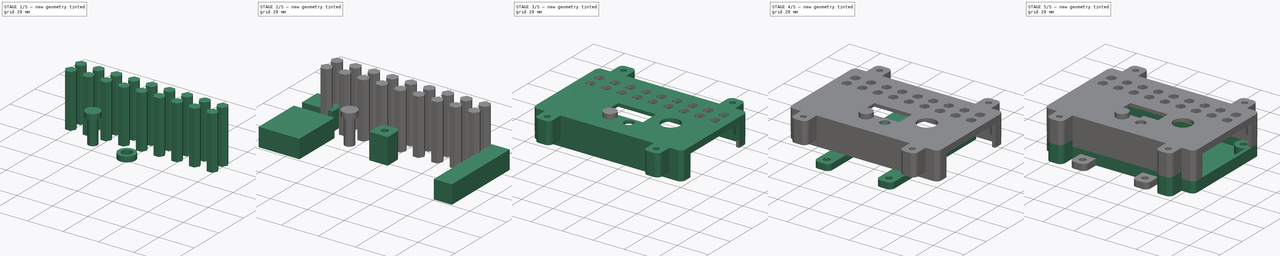
[diagram: build sequence overview — one tinted view per stage of 5, left to right]
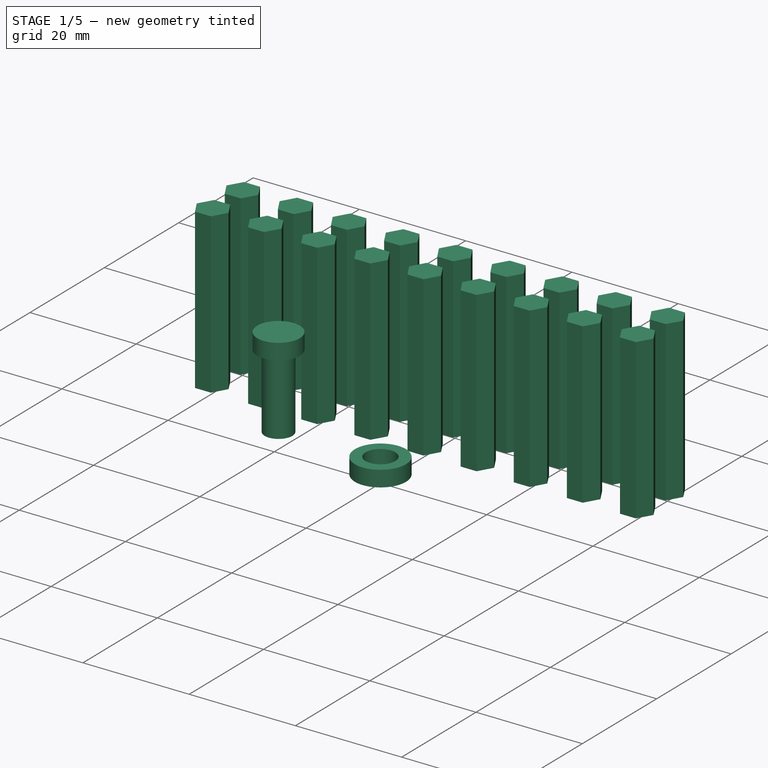
[diagram: stage 1 of 5 — iso view after this stage's code; geometry added in this stage tinted green]
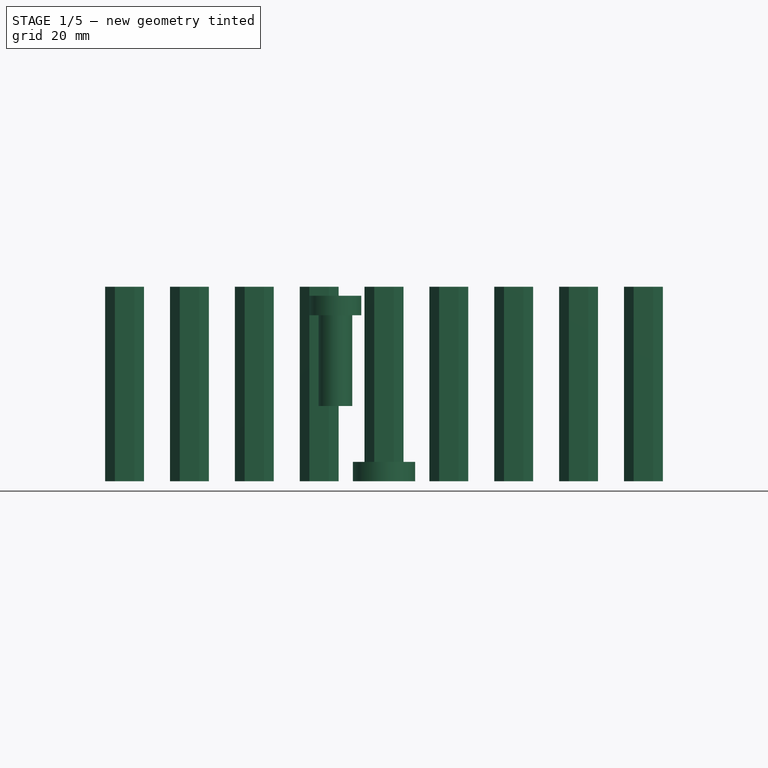
[diagram: stage 1 of 5 — front view after this stage's code; geometry added in this stage tinted green]
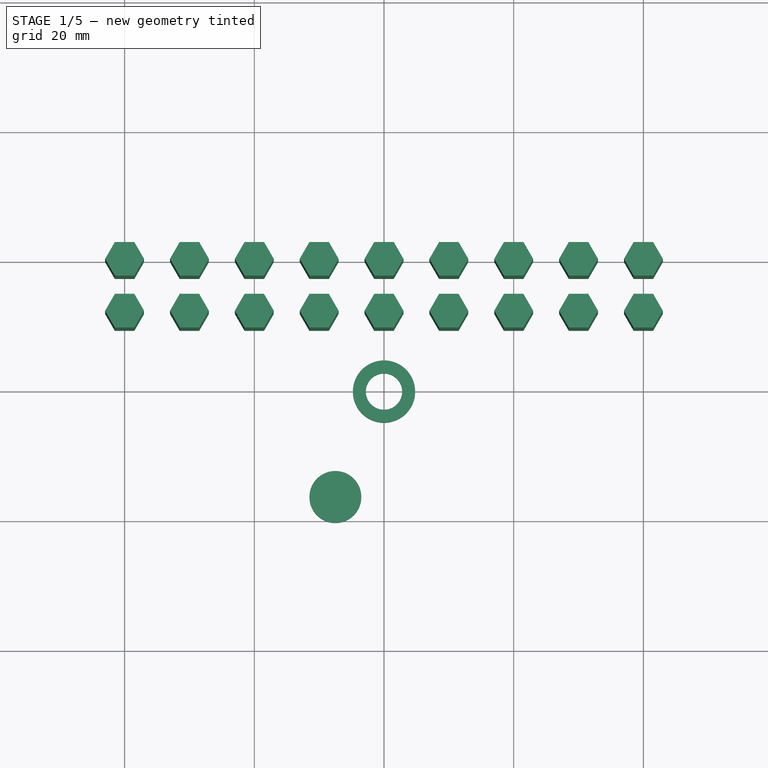
[diagram: stage 1 of 5 — top view after this stage's code; geometry added in this stage tinted green]
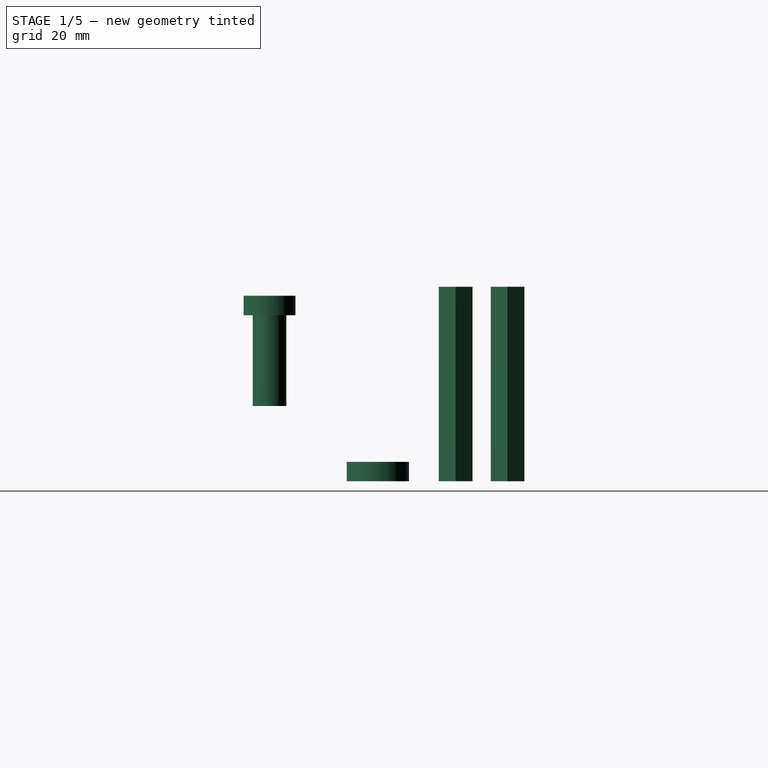
[diagram: stage 1 of 5 — right view after this stage's code; geometry added in this stage tinted green]
FCSTD DOCUMENT  (FreeCAD 0.21R33771 (Git))
Label: 99gears_welding
License: All rights reserved
LicenseURL: http://en.wikipedia.org/wiki/All_rights_reserved
objects: Part::MultiFuse×10, Part::Extrusion×7, Sketcher::SketchObject×6, Part::Mirroring×6, Part::Cylinder×5, Part::Cut×5, Part::Compound×5, Part::Box×3, Part::Fillet×3, App::MeasureDistance×2, Part::FeaturePython×2, Image::ImagePlane×1, Part::RegularPolygon×1
note: 52 computed .brp shape members not serialized (recipe doc carries the construction recipe); baked Part::Feature solids carry a one-line shape summary decoded from their .brp

FEATURE [Sketcher::SketchObject] Sketch004  label="top wall sketch"
  FullyConstrained = false
  sketch-geometry (24):
    g0: LineSegment StartX=-45.0913 StartY=30.0485 StartZ=0 EndX=45.0913 EndY=30.0485 EndZ=0
    g1: LineSegment StartX=48.0913 StartY=27.0485 StartZ=0 EndX=48.0913 EndY=-27.0485 EndZ=0
    g2: LineSegment StartX=45.0913 StartY=-30.0485 StartZ=0 EndX=-45.0913 EndY=-30.0485 EndZ=0
    g3: LineSegment StartX=-48.0913 StartY=-27.0485 StartZ=0 EndX=-48.0913 EndY=27.0485 EndZ=0
    g4: LineSegment StartX=-37.9831 StartY=28.0485 StartZ=0 EndX=39.0042 EndY=28.0485 EndZ=0
    g5: LineSegment StartX=46.0913 StartY=20.9614 StartZ=0 EndX=46.0913 EndY=-20.321 EndZ=0
    g6: LineSegment StartX=38.3639 StartY=-28.0485 StartZ=0 EndX=-37.9831 EndY=-28.0485 EndZ=0
    g7: LineSegment StartX=-46.0913 StartY=-19.9402 StartZ=0 EndX=-46.0913 EndY=19.9402 EndZ=0
    g8: GeomPoint X=0 Y=30.0485 Z=0
    g9: GeomPoint X=0 Y=28.0485 Z=0
    g10: GeomPoint X=-48.0913 Y=0 Z=0
    g11: GeomPoint X=-46.0913 Y=0 Z=0
    g12: GeomPoint X=0 Y=-28.0485 Z=0
    g13: GeomPoint X=0 Y=-30.0485 Z=0
    g14: GeomPoint X=46.0913 Y=0 Z=0
    g15: GeomPoint X=48.0913 Y=0 Z=0
    g16: ArcOfCircle CenterX=-45.0913 CenterY=27.0485 CenterZ=0 NormalX=0 NormalY=0 NormalZ=1 AngleXU=0 Radius=3 StartAngle=1.5708 EndAngle=3.14159
    g17: ArcOfCircle CenterX=-45.0913 CenterY=-27.0485 CenterZ=0 NormalX=0 NormalY=0 NormalZ=1 AngleXU=0 Radius=3 StartAngle=3.14159 EndAngle=4.71239
    g18: ArcOfCircle CenterX=45.0913 CenterY=-27.0485 CenterZ=0 NormalX=0 NormalY=0 NormalZ=1 AngleXU=0 Radius=3 StartAngle=4.71239 EndAngle=6.28319
    g19: ArcOfCircle CenterX=45.0913 CenterY=27.0485 CenterZ=0 NormalX=0 NormalY=0 NormalZ=1 AngleXU=0 Radius=3 StartAngle=-9e-16 EndAngle=1.5708
    g20: ArcOfCircle CenterX=-37.9831 CenterY=19.9402 CenterZ=0 NormalX=0 NormalY=0 NormalZ=1 AngleXU=0 Radius=8.10825 StartAngle=1.5708 EndAngle=3.14159
    g21: ArcOfCircle CenterX=-37.9831 CenterY=-19.9402 CenterZ=0 NormalX=0 NormalY=0 NormalZ=1 AngleXU=0 Radius=8.10825 StartAngle=3.14159 EndAngle=4.71239
    g22: ArcOfCircle CenterX=38.3639 CenterY=-20.321 CenterZ=0 NormalX=0 NormalY=0 NormalZ=1 AngleXU=0 Radius=7.72745 StartAngle=4.71239 EndAngle=6.28319
    g23: ArcOfCircle CenterX=39.0042 CenterY=20.9614 CenterZ=0 NormalX=0 NormalY=0 NormalZ=1 AngleXU=0 Radius=7.08713 StartAngle=0 EndAngle=1.5708
  constraints (48):
    c: Horizontal(g0)
    c: Vertical(g1)
    c: Vertical(g3)
    c: Horizontal(g4)
    c: Vertical(g5)
    c: Vertical(g7)
    c: Symmetric(g4,g6,g-1)
    c: PointOnObject(g8,g0)
    c: PointOnObject(g9,g4)
    c: PointOnObject(g10,g3)
    c: PointOnObject(g11,g7)
    c: PointOnObject(g12,g6)
    c: PointOnObject(g12,g-2)
    c: PointOnObject(g13,g-2)
    c: PointOnObject(g10,g-1)
    c: PointOnObject(g11,g-1)
    c: Symmetric(g14,g11,g-2)
    c: Symmetric(g10,g15,g-2)
    c: Symmetric(g9,g12,g-1)
    c: Symmetric(g8,g13,g-1)
    c: Tangent(g0,g16) = 1.5708
    c: Tangent(g3,g16) = 1.5708
    c: Tangent(g3,g17) = 1.5708
    c: Tangent(g2,g17) = 1.5708
    c: Tangent(g2,g18) = 1.5708
    c: Tangent(g1,g18) = 1.5708
    c: Tangent(g1,g19) = 1.5708
    c: Tangent(g0,g19) = 1.5708
    c: Equal(g16,g17)
    c: Equal(g17,g18)
    c: Equal(g18,g19)
    c: Radius(g16) = 3
    c: PointOnObject(g13,g2)
    c: Horizontal(g2)
    c: PointOnObject(g15,g1)
    c: PointOnObject(g14,g5)
    c: DistanceX(g14,g15) = 2
    c: DistanceY(g9,g8) = 2
    c: DistanceY(g13,g8) = 60.097  'OuterWidth'
    c: DistanceX(g10,g15) = 96.1827  'OuterLength'
    c: Tangent(g23,g4) = 1.5708
    c: Tangent(g23,g5) = 1.5708
    c: Tangent(g20,g4) = 1.5708
    c: Tangent(g20,g7) = 1.5708
    c: Tangent(g21,g7) = 1.5708
    c: Tangent(g21,g6) = 1.5708
    c: Tangent(g22,g6) = 1.5708
    c: Tangent(g22,g5) = 1.5708
FEATURE [Part::Extrusion] Extrude004  label="top wall sketch extrude"
  Base = -> Sketch004
  Dir = (0,0,1)
  DirMode = 2
  FaceMakerClass = Part::FaceMakerBullseye
  LengthFwd = 12
  LengthRev = 0
  Solid = true
  Symmetric = false
FEATURE [Sketcher::SketchObject] Sketch005  label="top sketch"
  FullyConstrained = false
  sketch-geometry (23):
    g0: LineSegment StartX=-45.0913 StartY=30.0485 StartZ=0 EndX=45.0913 EndY=30.0485 EndZ=0
    g1: LineSegment StartX=48.0913 StartY=27.0485 StartZ=0 EndX=48.0913 EndY=-27.0485 EndZ=0
    g2: LineSegment StartX=45.0913 StartY=-30.0485 StartZ=0 EndX=-45.0913 EndY=-30.0485 EndZ=0
    g3: LineSegment StartX=-48.0913 StartY=-27.0485 StartZ=0 EndX=-48.0913 EndY=27.0485 EndZ=0
    g4: GeomPoint X=0 Y=30.0485 Z=0
    g5: GeomPoint X=0 Y=28.0485 Z=0
    g6: GeomPoint X=-48.0913 Y=0 Z=0
    g7: GeomPoint X=-46.0913 Y=0 Z=0
    g8: GeomPoint X=0 Y=-28.0485 Z=0
    g9: GeomPoint X=0 Y=-30.0485 Z=0
    g10: GeomPoint X=46.0913 Y=0 Z=0
    g11: GeomPoint X=48.0913 Y=0 Z=0
    g12: ArcOfCircle CenterX=-45.0913 CenterY=27.0485 CenterZ=0 NormalX=0 NormalY=0 NormalZ=1 AngleXU=0 Radius=3 StartAngle=1.5708 EndAngle=3.14159
    g13: ArcOfCircle CenterX=-45.0913 CenterY=-27.0485 CenterZ=0 NormalX=0 NormalY=0 NormalZ=1 AngleXU=0 Radius=3 StartAngle=3.14159 EndAngle=4.71239
    g14: ArcOfCircle CenterX=45.0913 CenterY=-27.0485 CenterZ=0 NormalX=0 NormalY=0 NormalZ=1 AngleXU=0 Radius=3 StartAngle=4.71239 EndAngle=6.28319
    g15: ArcOfCircle CenterX=45.0913 CenterY=27.0485 CenterZ=0 NormalX=0 NormalY=0 NormalZ=1 AngleXU=0 Radius=3 StartAngle=-9e-16 EndAngle=1.5708
    g16: LineSegment StartX=-13.964 StartY=0.039204 StartZ=0 EndX=10.2896 EndY=0.039204 EndZ=0
    g17: LineSegment StartX=10.2896 StartY=0.039204 StartZ=0 EndX=10.2896 EndY=-12.0876 EndZ=0
    g18: LineSegment StartX=10.2896 StartY=-12.0876 StartZ=0 EndX=-13.964 EndY=-12.0876 EndZ=0
    g19: LineSegment StartX=-13.964 StartY=-12.0876 StartZ=0 EndX=-13.964 EndY=0.039204 EndZ=0
    g20: Circle CenterX=22.8655 CenterY=-4.30248 CenterZ=0 NormalX=0 NormalY=0 NormalZ=1 AngleXU=0 Radius=5.90753
    g21: Circle CenterX=-7.47022 CenterY=-16.7287 CenterZ=0 NormalX=0 NormalY=0 NormalZ=1 AngleXU=0 Radius=3
    g22: Circle CenterX=4.52978 CenterY=-16.7287 CenterZ=0 NormalX=0 NormalY=0 NormalZ=1 AngleXU=0 Radius=3
  constraints (44):
    c: Horizontal(g0)
    c: Vertical(g1)
    c: Vertical(g3)
    c: PointOnObject(g4,g0)
    c: PointOnObject(g6,g3)
    c: PointOnObject(g8,g-2)
    c: PointOnObject(g9,g-2)
    c: PointOnObject(g6,g-1)
    c: PointOnObject(g7,g-1)
    c: Symmetric(g10,g7,g-2)
    c: Symmetric(g6,g11,g-2)
    c: Symmetric(g5,g8,g-1)
    c: Symmetric(g4,g9,g-1)
    c: Tangent(g0,g12) = 1.5708
    c: Tangent(g3,g12) = 1.5708
    c: Tangent(g3,g13) = 1.5708
    c: Tangent(g2,g13) = 1.5708
    c: Tangent(g2,g14) = 1.5708
    c: Tangent(g1,g14) = 1.5708
    c: Tangent(g1,g15) = 1.5708
    c: Tangent(g0,g15) = 1.5708
    c: Equal(g12,g13)
    c: Equal(g13,g14)
    c: Equal(g14,g15)
    c: Radius(g12) = 3
    c: PointOnObject(g9,g2)
    c: Horizontal(g2)
    c: PointOnObject(g11,g1)
    c: DistanceX(g10,g11) = 2
    c: DistanceY(g5,g4) = 2
    c: DistanceY(g9,g4) = 60.097  'OuterWidth'
    c: DistanceX(g6,g11) = 96.1827  'OuterLength'
    c: Coincident(g16,g17)
    c: Coincident(g17,g18)
    c: Coincident(g18,g19)
    c: Coincident(g19,g16)
    c: Horizontal(g16)
    c: Horizontal(g18)
    c: Vertical(g17)
    c: Vertical(g19)
    c: Radius(g21) = 3  'button_hole_r'
    c: Equal(g22,g21)
    c: DistanceX(g21,g22) = 12  'button_hole_dist'
    c: DistanceY(g21,g22) = 0
FEATURE [Part::Extrusion] Extrude005  label="top extrude"
  Base = -> Sketch005
  Dir = (0,0,1)
  DirMode = 2
  FaceMakerClass = Part::FaceMakerBullseye
  LengthFwd = 2
  LengthRev = 0
  Placement = pos=(0,0,12) rot=(0,0,1;0rad)
  Solid = true
  Symmetric = false
  expr: .Placement.Base.z = Extrude004.LengthFwd
FEATURE [Part::RegularPolygon] RegularPolygon  label="Regular polygon"
  AttacherType = Attacher::AttachEngine3D
  Circumradius = 3
  Polygon = 6
FEATURE [Part::Extrusion] Extrude006
  Base = -> RegularPolygon
  Dir = (0,0,1)
  DirMode = 2
  FaceMakerClass = Part::FaceMakerBullseye
  LengthFwd = 30
  LengthRev = 0
  Solid = true
  Symmetric = false
FEATURE [Part::FeaturePython] Array  label="ventilation array"  # Draft array (typed FeaturePython)
  AlwaysSyncPlacement = false
  Angle = 360
  ArrayType = 0
  Axis = (0,0,1)
  Base = -> Extrude006
  Center = (0,0,0)
  Count = 18
  ExpandArray = false
  Fuse = false
  IntervalAxis = (0,0,0)
  IntervalX = (10,0,0)
  IntervalY = (0,8,0)
  IntervalZ = (0,0,100)
  NumberCircles = 3
  NumberPolar = 5
  NumberX = 9
  NumberY = 2
  NumberZ = 1
  Placement = pos=(-40,12,0) rot=(0,0,1;0rad)
  PlacementList = 18 placements: [(0,0,0),(0,8,0),(10,0,0),(10,8,0),(20,0,0),(20,8,0),(30,0,0),(30,8,0),(40,0,0),(40,8,0),(50,0,0),(50,8,0),(60,0,0),(60,8,0),(70,0,0),(70,8,0),(80,0,0),(80,8,0)]
  RadialDistance = 50
  ScaleList = (18) [(1,1,1),(1,1,1),(1,1,1),(1,1,1),(1,1,1),(1,1,1),(1,1,1),(1,1,1),(1,1,1),(1,1,1),(1,1,1),(1,1,1),(1,1,1),(1,1,1),(1,1,1),(1,1,1),(1,1,1),(1,1,1)]
  Symmetry = 1
  TangentialDistance = 25
FEATURE [Part::Cylinder] Cylinder003  label="button pusher top"
  Angle = 360
  AttacherType = Attacher::AttachEngine3D
  FirstAngle = 0
  Height = 3
  Placement = pos=(0,0,14) rot=(0,0,1;0rad)
  Radius = 4
  SecondAngle = 0
  expr: .Placement.Base.z = <<button pusher>>.Height
FEATURE [Part::Cylinder] Cylinder004  label="button pusher"
  Angle = 360
  AttacherType = Attacher::AttachEngine3D
  FirstAngle = 0
  Height = 14
  Radius = 2.6
  SecondAngle = 0
  expr: Height = <<top wall sketch extrude>>.LengthFwd + <<top extrude>>.LengthFwd
  expr: Radius = <<top sketch>>.Constraints.button_hole_r - 0.4 mm
FEATURE [Part::MultiFuse] Fusion009  label="button pusher fusion"
  Shapes = -> [Cylinder003,Cylinder004]
FEATURE [Part::Compound] Compound004  label="button pusher compound"
  Links = -> [Fusion009]
  Placement = pos=(-7.5,-16.7,11.6) rot=(0,0,1;0rad)
FEATURE [Part::FeaturePython] Tube  label="button pusher skirt"  # WARN: FeaturePython — macro-defined, semantics opaque (R4)
  AttacherType = Attacher::AttachEngine3D
  Height = 3
  InnerRadius = 2.8
  OuterRadius = 4.8
  expr: InnerRadius = <<button pusher>>.Radius + 0.2 mm
  expr: OuterRadius = InnerRadius + 2 mm
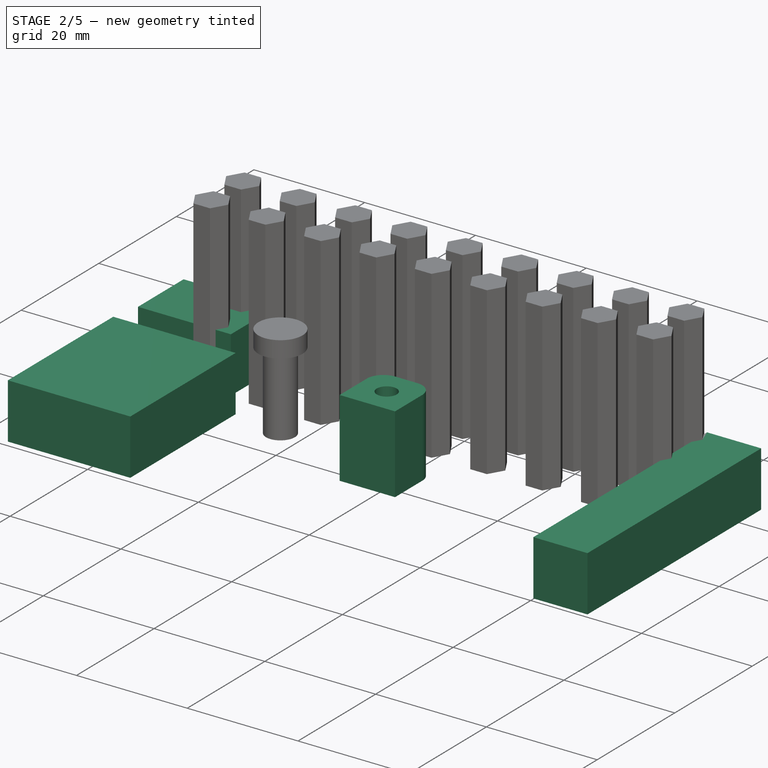
[diagram: stage 2 of 5 — iso view after this stage's code; geometry added in this stage tinted green]
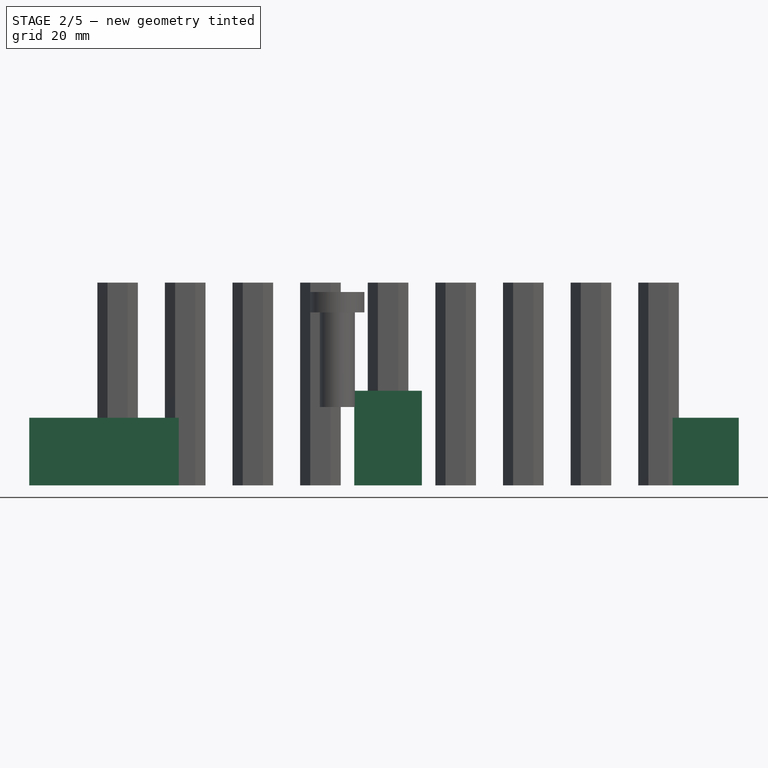
[diagram: stage 2 of 5 — front view after this stage's code; geometry added in this stage tinted green]
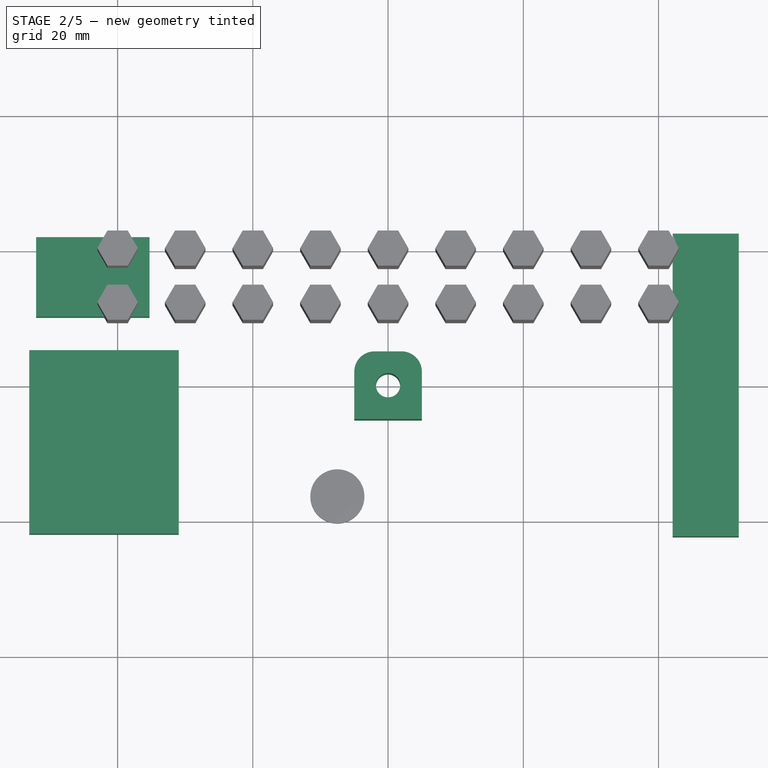
[diagram: stage 2 of 5 — top view after this stage's code; geometry added in this stage tinted green]
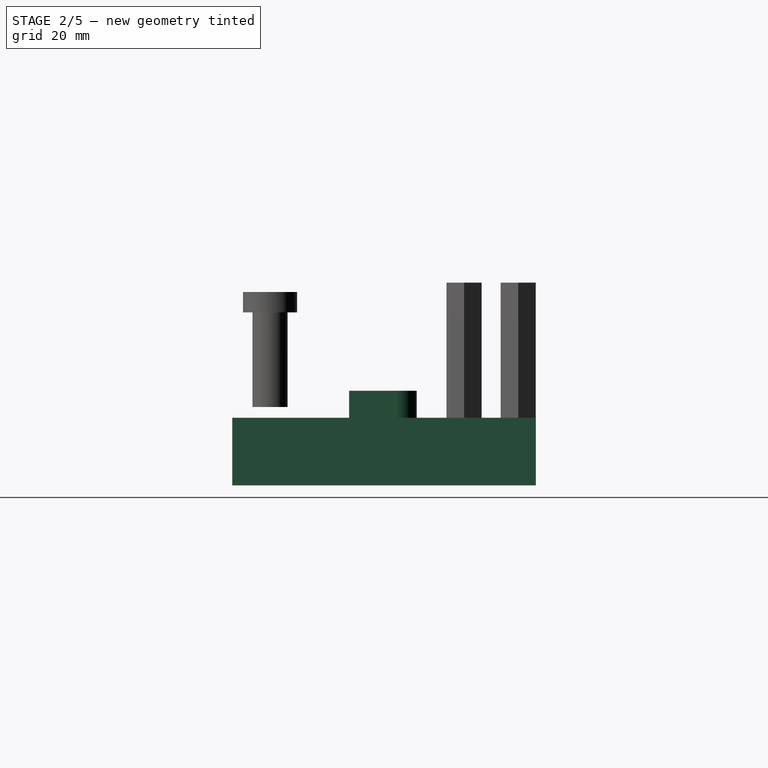
[diagram: stage 2 of 5 — right view after this stage's code; geometry added in this stage tinted green]
FEATURE [Sketcher::SketchObject] Sketch
  FullyConstrained = true
  sketch-geometry (28):
    g0: LineSegment StartX=-45 StartY=30 StartZ=0 EndX=45 EndY=30 EndZ=0
    g1: LineSegment StartX=48 StartY=27 StartZ=0 EndX=48 EndY=-27 EndZ=0
    g2: LineSegment StartX=45 StartY=-30 StartZ=0 EndX=-45 EndY=-30 EndZ=0
    g3: LineSegment StartX=-48 StartY=-27 StartZ=0 EndX=-48 EndY=27 EndZ=0
    g4: Circle CenterX=-42 CenterY=24 CenterZ=0 NormalX=0 NormalY=0 NormalZ=1 AngleXU=0 Radius=2.1
    g5: Circle CenterX=42 CenterY=24 CenterZ=0 NormalX=0 NormalY=0 NormalZ=1 AngleXU=0 Radius=2.1
    g6: Circle CenterX=42 CenterY=-24 CenterZ=0 NormalX=0 NormalY=0 NormalZ=1 AngleXU=0 Radius=2.1
    g7: Circle CenterX=-42 CenterY=-24 CenterZ=0 NormalX=0 NormalY=0 NormalZ=1 AngleXU=0 Radius=2.1
    g8: ArcOfCircle CenterX=-42 CenterY=24 CenterZ=0 NormalX=0 NormalY=0 NormalZ=1 AngleXU=0 Radius=5 StartAngle=3.78509 EndAngle=7.21048
    g9: ArcOfCircle CenterX=42 CenterY=24 CenterZ=0 NormalX=0 NormalY=0 NormalZ=1 AngleXU=0 Radius=5 StartAngle=2.2143 EndAngle=5.63968
    g10: ArcOfCircle CenterX=-42 CenterY=-24 CenterZ=0 NormalX=0 NormalY=0 NormalZ=1 AngleXU=0 Radius=5 StartAngle=5.35589 EndAngle=8.78128
    g11: ArcOfCircle CenterX=42 CenterY=-24 CenterZ=0 NormalX=0 NormalY=0 NormalZ=1 AngleXU=0 Radius=5 StartAngle=0.643501 EndAngle=4.06889
    g12: LineSegment StartX=-39 StartY=28 StartZ=0 EndX=39 EndY=28 EndZ=0
    g13: LineSegment StartX=46 StartY=21 StartZ=0 EndX=46 EndY=-21 EndZ=0
    g14: LineSegment StartX=39 StartY=-28 StartZ=0 EndX=-39 EndY=-28 EndZ=0
    g15: LineSegment StartX=-46 StartY=-21 StartZ=0 EndX=-46 EndY=21 EndZ=0
    g16: GeomPoint X=0 Y=30 Z=0
    g17: GeomPoint X=0 Y=28 Z=0
    g18: GeomPoint X=-48 Y=0 Z=0
    g19: GeomPoint X=-46 Y=0 Z=0
    g20: GeomPoint X=0 Y=-28 Z=0
    g21: GeomPoint X=0 Y=-30 Z=0
    g22: GeomPoint X=46 Y=0 Z=0
    g23: GeomPoint X=48 Y=0 Z=0
    g24: ArcOfCircle CenterX=-45 CenterY=27 CenterZ=0 NormalX=0 NormalY=0 NormalZ=1 AngleXU=0 Radius=3 StartAngle=1.5708 EndAngle=3.14159
    g25: ArcOfCircle CenterX=-45 CenterY=-27 CenterZ=0 NormalX=0 NormalY=0 NormalZ=1 AngleXU=0 Radius=3 StartAngle=3.14159 EndAngle=4.71239
    g26: ArcOfCircle CenterX=45 CenterY=-27 CenterZ=0 NormalX=0 NormalY=0 NormalZ=1 AngleXU=0 Radius=3 StartAngle=4.71239 EndAngle=6.28319
    g27: ArcOfCircle CenterX=45 CenterY=27 CenterZ=0 NormalX=0 NormalY=0 NormalZ=1 AngleXU=0 Radius=3 StartAngle=-9e-16 EndAngle=1.5708
  constraints (66):
    c: Horizontal(g0)
    c: Vertical(g1)
    c: Vertical(g3)
    c: DistanceX(g7,g6) = 84
    c: Symmetric(g7,g6,g-2)
    c: Radius(g7) = 2.1
    c: Equal(g6,g7)
    c: Equal(g4,g7)
    c: Equal(g7,g5)
    c: Symmetric(g4,g7,g-1)
    c: Symmetric(g5,g6,g-1)
    c: DistanceY(g7,g4) = 48
    c: Equal(g8,g9)
    c: Equal(g9,g11)
    c: Coincident(g12,g8)
    c: Coincident(g12,g9)
    c: Horizontal(g12)
    c: Coincident(g13,g9)
    c: Coincident(g13,g11)
    c: Vertical(g13)
    c: Coincident(g14,g11)
    c: Coincident(g14,g10)
    c: Coincident(g15,g10)
    c: Coincident(g15,g8)
    c: Vertical(g15)
    c: Coincident(g8,g4)
    c: Coincident(g10,g7)
    c: Coincident(g6,g11)
    c: Coincident(g9,g5)
    c: Radius(g10) = 5
    c: Symmetric(g8,g10,g-1)
    c: PointOnObject(g16,g0)
    c: PointOnObject(g17,g12)
    c: PointOnObject(g18,g3)
    c: PointOnObject(g19,g15)
    c: PointOnObject(g20,g14)
    c: PointOnObject(g20,g-2)
    c: PointOnObject(g21,g-2)
    c: PointOnObject(g18,g-1)
    c: PointOnObject(g19,g-1)
    c: Symmetric(g22,g19,g-2)
    c: Symmetric(g18,g23,g-2)
    c: Symmetric(g17,g20,g-1)
    c: Symmetric(g16,g21,g-1)
    c: DistanceX(g18,g4) = 6
    c: DistanceY(g4,g16) = 6
    c: Tangent(g0,g24) = 1.5708
    c: Tangent(g3,g24) = 1.5708
    c: Tangent(g3,g25) = 1.5708
    c: Tangent(g2,g25) = 1.5708
    c: Tangent(g2,g26) = 1.5708
    c: Tangent(g1,g26) = 1.5708
    c: Tangent(g1,g27) = 1.5708
    c: Tangent(g0,g27) = 1.5708
    c: Equal(g24,g25)
    c: Equal(g25,g26)
    c: Equal(g26,g27)
    c: Radius(g24) = 3
    c: PointOnObject(g21,g2)
    c: Horizontal(g2)
    c: PointOnObject(g23,g1)
    c: PointOnObject(g22,g13)
    c: DistanceX(g22,g23) = 2
    c: DistanceY(g17,g16) = 2
    c: DistanceY(g21,g16) = 60  'OuterWidth'
    c: DistanceX(g18,g23) = 96  'OuterLength'
FEATURE [Image::ImagePlane] IMG_20240705_210619475
  Placement = pos=(3.1931,3.01473,0) rot=(0,0,-1;0.017453rad)
  XSize = 166.19
  YSize = 124.642
FEATURE [App::MeasureDistance] Distance  label="Distance: 48.52 mm"
  Distance = 48.5165
  P1 = (-45.6855,20.4307,1e-16)
  P2 = (-45.2761,-28.0841,1e-16)
FEATURE [App::MeasureDistance] Distance001  label="Distance: 84.26 mm"
  Distance = 84.2557
  P1 = (-45.6855,20.3283,7.1e-15)
  P2 = (38.55,22.1707,7.1e-15)
FEATURE [Part::Extrusion] Extrude
  Base = -> Sketch
  Dir = (0,0,1)
  DirMode = 2
  FaceMakerClass = Part::FaceMakerBullseye
  LengthFwd = 5
  LengthRev = 0
  Placement = pos=(0,0,2) rot=(0,0,1;0rad)
  Solid = true
  Symmetric = false
  expr: .Placement.Base.z = Extrude001.LengthFwd
FEATURE [Sketcher::SketchObject] Sketch001
  ExternalGeometry = -> [Sketch]
  FullyConstrained = false
  sketch-geometry (8):
    g0: LineSegment StartX=-48 StartY=27 StartZ=0 EndX=-48 EndY=-27 EndZ=0
    g1: LineSegment StartX=-45 StartY=-30 StartZ=0 EndX=45 EndY=-30 EndZ=0
    g2: LineSegment StartX=45 StartY=30 StartZ=0 EndX=-45 EndY=30 EndZ=0
    g3: LineSegment StartX=48 StartY=27 StartZ=0 EndX=48 EndY=-27 EndZ=0
    g4: ArcOfCircle CenterX=-45 CenterY=27 CenterZ=0 NormalX=0 NormalY=0 NormalZ=1 AngleXU=0 Radius=3 StartAngle=1.5708 EndAngle=3.14159
    g5: ArcOfCircle CenterX=-45 CenterY=-27 CenterZ=0 NormalX=0 NormalY=0 NormalZ=1 AngleXU=0 Radius=3 StartAngle=3.14159 EndAngle=4.71239
    g6: ArcOfCircle CenterX=45 CenterY=-27 CenterZ=0 NormalX=0 NormalY=0 NormalZ=1 AngleXU=0 Radius=3 StartAngle=4.71239 EndAngle=6.28319
    g7: ArcOfCircle CenterX=45 CenterY=27 CenterZ=0 NormalX=0 NormalY=0 NormalZ=1 AngleXU=0 Radius=3 StartAngle=0 EndAngle=1.5708
  constraints (14):
    c: Coincident(g3,g-4)
    c: Coincident(g3,g-5)
    c: Coincident(g4,g-3)
    c: Coincident(g4,g2)
    c: Coincident(g4,g0)
    c: Coincident(g5,g-6)
    c: Coincident(g5,g1)
    c: Coincident(g5,g0)
    c: Coincident(g6,g-5)
    c: Coincident(g6,g3)
    c: Coincident(g6,g1)
    c: Coincident(g7,g-4)
    c: Coincident(g7,g2)
    c: Coincident(g7,g3)
FEATURE [Part::Extrusion] Extrude001
  Base = -> Sketch001
  Dir = (0,0,1)
  DirMode = 2
  FaceMakerClass = Part::FaceMakerBullseye
  LengthFwd = 2
  LengthRev = 0
  Solid = true
  Symmetric = false
FEATURE [Sketcher::SketchObject] Sketch003
  FullyConstrained = false
  sketch-geometry (12):
    g0: LineSegment StartX=51.8543 StartY=22.4889 StartZ=0 EndX=42.0797 EndY=22.4889 EndZ=0
    g1: LineSegment StartX=42.0797 StartY=22.4889 StartZ=0 EndX=42.0797 EndY=-22.2893 EndZ=0
    g2: LineSegment StartX=42.0797 StartY=-22.2893 StartZ=0 EndX=51.8543 EndY=-22.2893 EndZ=0
    g3: LineSegment StartX=51.8543 StartY=-22.2893 StartZ=0 EndX=51.8543 EndY=22.4889 EndZ=0
    g4: LineSegment StartX=-52.0503 StartY=21.9605 StartZ=0 EndX=-35.275 EndY=21.9605 EndZ=0
    g5: LineSegment StartX=-35.275 StartY=21.9605 StartZ=0 EndX=-35.275 EndY=10.1969 EndZ=0
    g6: LineSegment StartX=-35.275 StartY=10.1969 StartZ=0 EndX=-52.0503 EndY=10.1969 EndZ=0
    g7: LineSegment StartX=-52.0503 StartY=10.1969 StartZ=0 EndX=-52.0503 EndY=21.9605 EndZ=0
    g8: LineSegment StartX=-53.0582 StartY=5.25245 StartZ=0 EndX=-30.9632 EndY=5.25245 EndZ=0
    g9: LineSegment StartX=-30.9632 StartY=5.25245 StartZ=0 EndX=-30.9632 EndY=-21.9077 EndZ=0
    g10: LineSegment StartX=-30.9632 StartY=-21.9077 StartZ=0 EndX=-53.0582 EndY=-21.9077 EndZ=0
    g11: LineSegment StartX=-53.0582 StartY=-21.9077 StartZ=0 EndX=-53.0582 EndY=5.25245 EndZ=0
  constraints (24):
    c: Coincident(g0,g1)
    c: Coincident(g1,g2)
    c: Coincident(g2,g3)
    c: Coincident(g3,g0)
    c: Horizontal(g0)
    c: Horizontal(g2)
    c: Vertical(g1)
    c: Vertical(g3)
    c: Coincident(g4,g5)
    c: Coincident(g5,g6)
    c: Coincident(g6,g7)
    c: Coincident(g7,g4)
    c: Horizontal(g4)
    c: Horizontal(g6)
    c: Vertical(g5)
    c: Vertical(g7)
    c: Coincident(g8,g9)
    c: Coincident(g9,g10)
    c: Coincident(g10,g11)
    c: Coincident(g11,g8)
    c: Horizontal(g8)
    c: Horizontal(g10)
    c: Vertical(g9)
    c: Vertical(g11)
FEATURE [Part::Extrusion] Extrude003  label="holes Extrude003"
  Base = -> Sketch003
  Dir = (0,0,1)
  DirMode = 2
  FaceMakerClass = Part::FaceMakerBullseye
  LengthFwd = 10
  LengthRev = 0
  Placement = pos=(0,0,7) rot=(0,0,1;0rad)
  Solid = true
  Symmetric = false
  expr: .Placement.Base.z = Extrude.LengthFwd + Extrude001.LengthFwd
FEATURE [Part::Box] Box002  label="Cube002"
  AttacherType = Attacher::AttachEngine3D
  Height = 14
  Length = 10
  Placement = pos=(-5,-5,0) rot=(0,0,1;0rad)
  Width = 10
  expr: .Placement.Base.x = -Length / 2
  expr: .Placement.Base.y = -Width / 2
FEATURE [Part::Cylinder] Cylinder002  label="bolt hole001"
  Angle = 360
  AttacherType = Attacher::AttachEngine3D
  FirstAngle = 0
  Height = 14
  Radius = 1.8
  SecondAngle = 0
  expr: Height = <<Cube002>>.Height
FEATURE [Part::Fillet] Fillet002
  Base = -> Box002
  Edges = 2 edges r=3: [Edge3,Edge7]
FEATURE [Part::Cut] Cut003
  Base = -> Fillet002
  Tool = -> Cylinder002
FEATURE [Part::Compound] Compound003  label="top wall extract compound"
  Links = -> [Extrude003]
  Placement = pos=(0,0,-7) rot=(0,0,1;0rad)
FEATURE [Part::MultiFuse] Fusion008  label="top wall extract fusion"
  Shapes = -> [Array,Compound003]
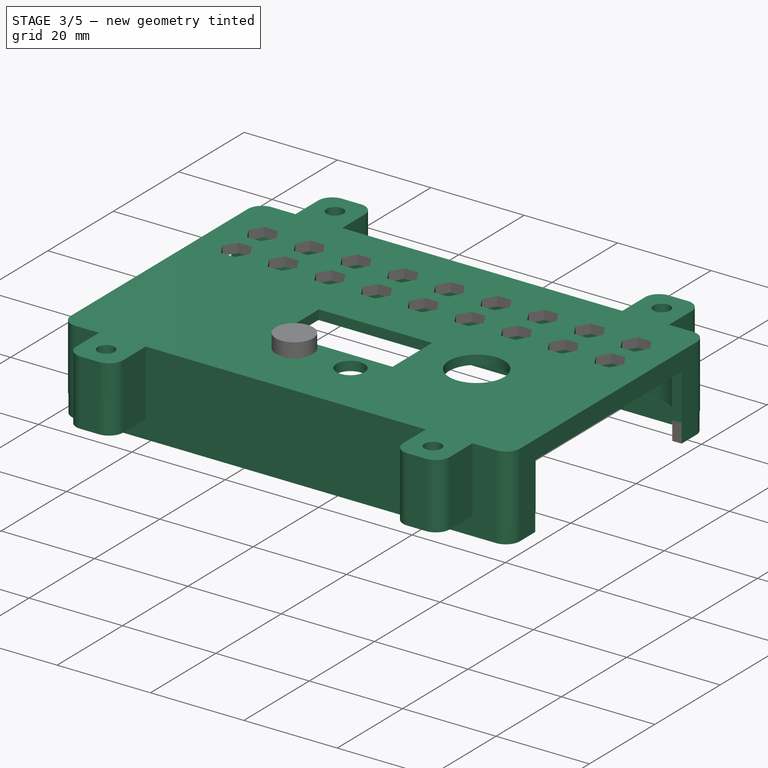
[diagram: stage 3 of 5 — iso view after this stage's code; geometry added in this stage tinted green]
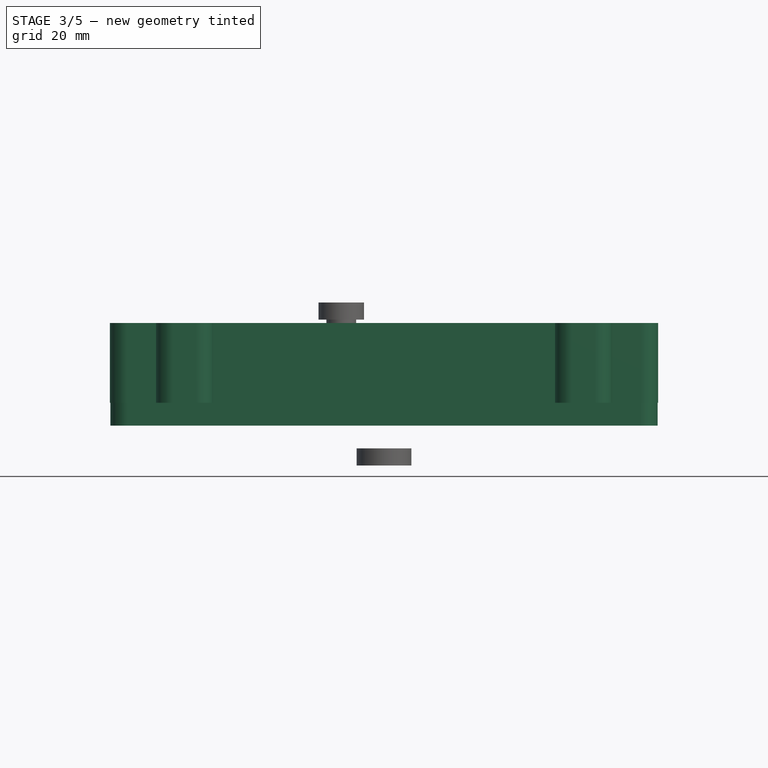
[diagram: stage 3 of 5 — front view after this stage's code; geometry added in this stage tinted green]
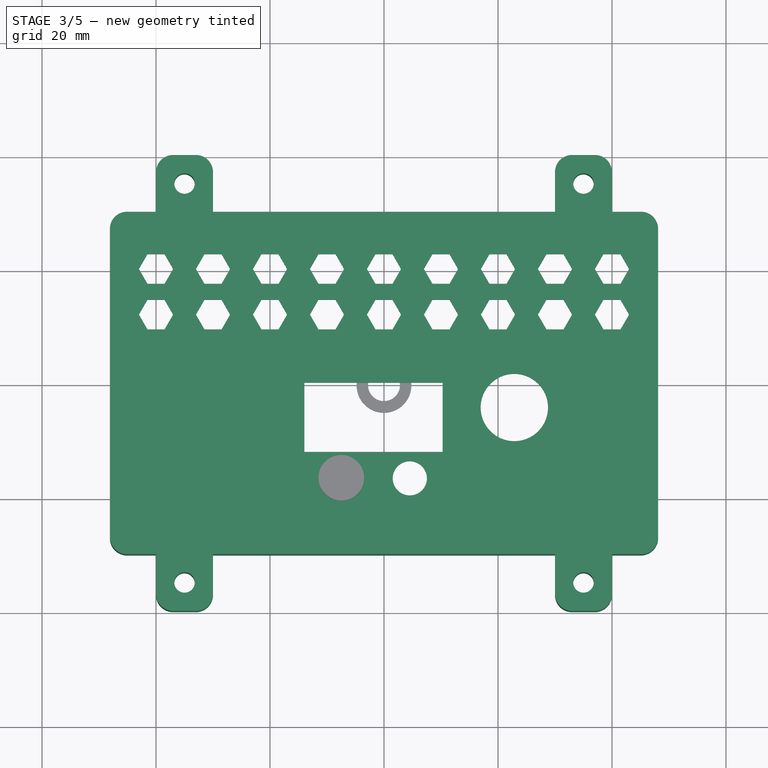
[diagram: stage 3 of 5 — top view after this stage's code; geometry added in this stage tinted green]
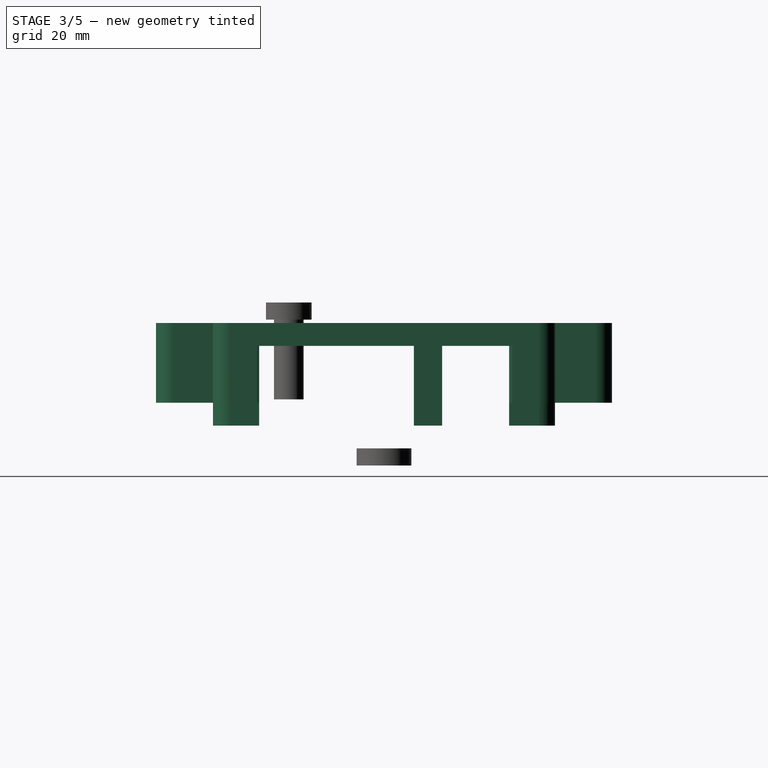
[diagram: stage 3 of 5 — right view after this stage's code; geometry added in this stage tinted green]
FEATURE [Sketcher::SketchObject] Sketch002
  ExternalGeometry = -> [Sketch]
  FullyConstrained = false
  sketch-geometry (16):
    g0: LineSegment StartX=-48 StartY=26.996 StartZ=0 EndX=-48 EndY=-27 EndZ=0
    g1: LineSegment StartX=-44.985 StartY=-30 StartZ=0 EndX=45 EndY=-30 EndZ=0
    g2: LineSegment StartX=45 StartY=30 StartZ=0 EndX=-45 EndY=30 EndZ=0
    g3: LineSegment StartX=48 StartY=27 StartZ=0 EndX=48 EndY=-27 EndZ=0
    g4: ArcOfCircle CenterX=-45 CenterY=27 CenterZ=0 NormalX=0 NormalY=0 NormalZ=1 AngleXU=0 Radius=3 StartAngle=1.5708 EndAngle=3.14292
    g5: ArcOfCircle CenterX=-45 CenterY=-27 CenterZ=0 NormalX=0 NormalY=0 NormalZ=1 AngleXU=0 Radius=3 StartAngle=3.14159 EndAngle=4.71738
    g6: ArcOfCircle CenterX=45 CenterY=-27 CenterZ=0 NormalX=0 NormalY=0 NormalZ=1 AngleXU=0 Radius=3 StartAngle=4.71239 EndAngle=6.28319
    g7: ArcOfCircle CenterX=45 CenterY=27 CenterZ=0 NormalX=0 NormalY=0 NormalZ=1 AngleXU=0 Radius=3 StartAngle=-9e-16 EndAngle=1.5708
    g8: LineSegment StartX=-45.2 StartY=-28 StartZ=0 EndX=45.2 EndY=-28 EndZ=0
    g9: LineSegment StartX=46 StartY=-27.2 StartZ=0 EndX=46 EndY=27.2 EndZ=0
    g10: LineSegment StartX=45.2 StartY=28 StartZ=0 EndX=-45.2 EndY=28 EndZ=0
    g11: LineSegment StartX=-46 StartY=27.2 StartZ=0 EndX=-46 EndY=-27.2 EndZ=0
    g12: ArcOfCircle CenterX=-45.2 CenterY=-27.2 CenterZ=0 NormalX=0 NormalY=0 NormalZ=1 AngleXU=0 Radius=0.8 StartAngle=3.14159 EndAngle=4.71239
    g13: ArcOfCircle CenterX=-45.2 CenterY=27.2 CenterZ=0 NormalX=0 NormalY=0 NormalZ=1 AngleXU=0 Radius=0.8 StartAngle=1.5708 EndAngle=3.14159
    g14: ArcOfCircle CenterX=45.2 CenterY=27.2 CenterZ=0 NormalX=0 NormalY=0 NormalZ=1 AngleXU=0 Radius=0.8 StartAngle=6e-16 EndAngle=1.5708
    g15: ArcOfCircle CenterX=45.2 CenterY=-27.2 CenterZ=0 NormalX=0 NormalY=0 NormalZ=1 AngleXU=0 Radius=0.8 StartAngle=4.71239 EndAngle=6.2832
  constraints (36):
    c: Coincident(g3,g-4)
    c: Coincident(g3,g-5)
    c: Coincident(g4,g-3)
    c: Coincident(g4,g2)
    c: Coincident(g4,g0)
    c: Coincident(g5,g-6)
    c: Coincident(g5,g1)
    c: Coincident(g5,g0)
    c: Coincident(g6,g-5)
    c: Coincident(g6,g3)
    c: Coincident(g6,g1)
    c: Coincident(g7,g-4)
    c: Coincident(g7,g2)
    c: Coincident(g7,g3)
    c: Vertical(g9)
    c: Horizontal(g10)
    c: Vertical(g11)
    c: PointOnObject(g-7,g11)
    c: PointOnObject(g-8,g10)
    c: PointOnObject(g-9,g9)
    c: PointOnObject(g-10,g8)
    c: Coincident(g15,g9)
    c: Equal(g15,g14)
    c: Equal(g14,g13)
    c: Equal(g13,g12)
    c: Tangent(g12,g11) = -1.5708
    c: Tangent(g12,g8) = -1.5708
    c: Tangent(g15,g8) = -1.5708
    c: Tangent(g14,g9) = -1.5708
    c: Tangent(g13,g10) = -1.5708
    c: Tangent(g13,g11) = -1.5708
    c: Symmetric(g8,g8,g-2)
    c: Tangent(g14,g10) = -1.5708
    c: Coincident(g0,g-6)
    c: Coincident(g2,g-3)
    c: Radius(g12) = 0.8
FEATURE [Part::Extrusion] Extrude002
  Base = -> Sketch002
  Dir = (0,0,1)
  DirMode = 2
  FaceMakerClass = Part::FaceMakerBullseye
  LengthFwd = 4
  LengthRev = 0
  Placement = pos=(0,0,7) rot=(0,0,1;0rad)
  Solid = true
  Symmetric = false
  expr: .Placement.Base.z = Extrude.LengthFwd + Extrude001.LengthFwd
FEATURE [Part::Cut] Cut002
  Base = -> Extrude002
  Tool = -> Extrude003
FEATURE [Part::Compound] Compound002
  Links = -> [Cut003]
  Placement = pos=(0,35,0) rot=(0,0,1;0rad)
  expr: .Placement.Base.y = Sketch.Constraints.OuterWidth / 2 + <<Cube002>>.Width / 2
FEATURE [Part::Mirroring] Part__Mirroring004  label="Fillet001 (Mirror #3)001"
  Base = (0,0,0)
  Normal = (0,1,0)
  Source = -> Compound002
FEATURE [Part::MultiFuse] Fusion006
  Placement = pos=(35,0,0) rot=(0,0,1;0rad)
  Shapes = -> [Part__Mirroring004,Compound002]
  expr: .Placement.Base.x = Sketch.Constraints.OuterLength / 2 - <<Cube002>>.Length - 3 mm
FEATURE [Part::Mirroring] Part__Mirroring005  label="Fusion001 (Mirror #4)001"
  Base = (0,0,0)
  Normal = (1,0,0)
  Source = -> Fusion006
FEATURE [Part::MultiFuse] Fusion007  label="attach hole fusion001"
  Shapes = -> [Fusion006,Part__Mirroring005]
FEATURE [Part::MultiFuse] Fusion005  label="top cover fusion"
  Shapes = -> [Extrude004,Extrude005,Fusion007]
FEATURE [Part::Cut] Cut004  label="top cover cut"
  Base = -> Fusion005
  Tool = -> Fusion008
FEATURE [Part::Compound] Compound001  label="top cover compound"
  Links = -> [Cut004]
  Placement = pos=(0,0,11) rot=(0,0,1;0rad)
  expr: .Placement.Base.z = Extrude002.Placement.Base.z + Extrude002.LengthFwd
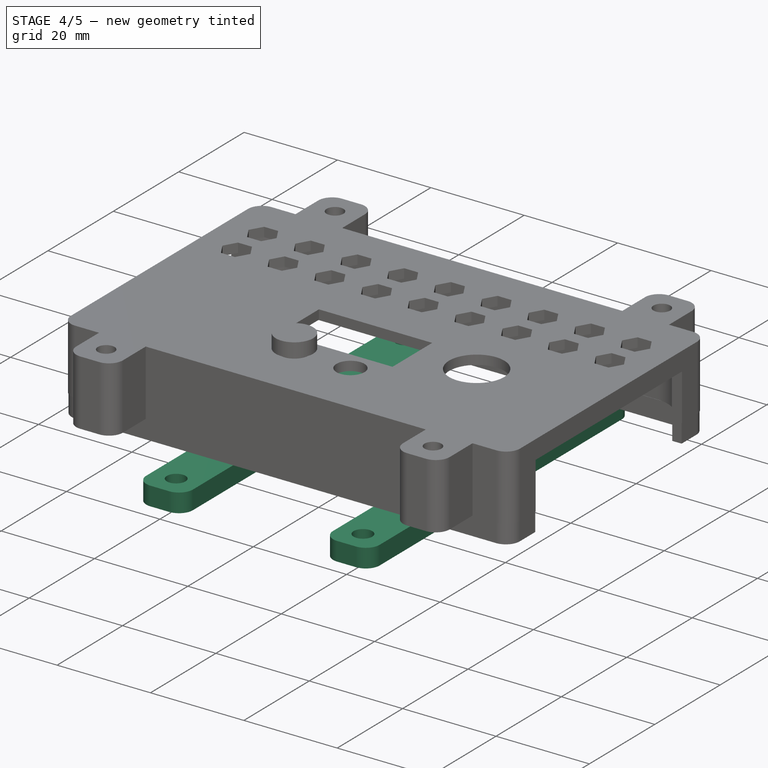
[diagram: stage 4 of 5 — iso view after this stage's code; geometry added in this stage tinted green]
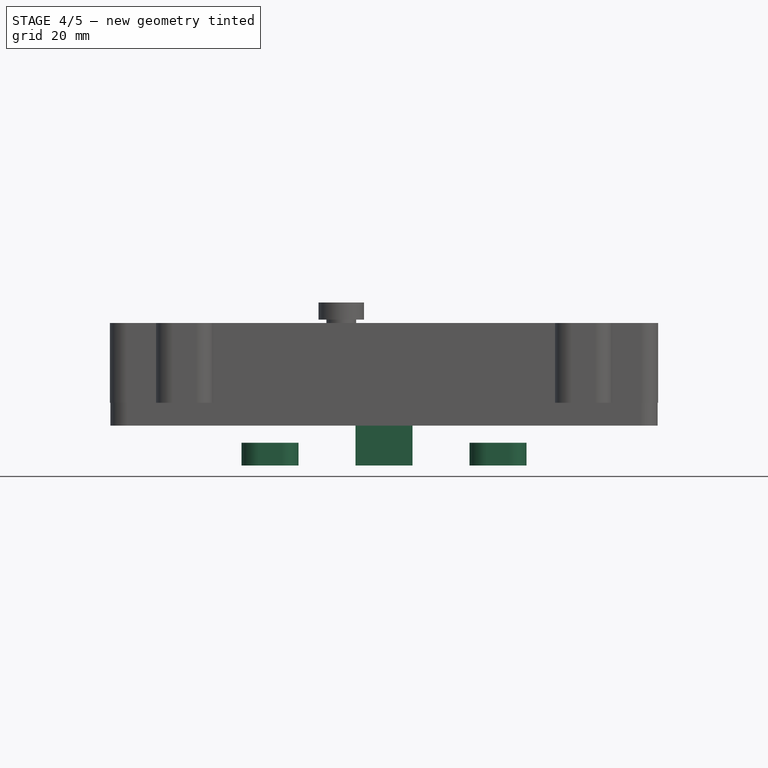
[diagram: stage 4 of 5 — front view after this stage's code; geometry added in this stage tinted green]
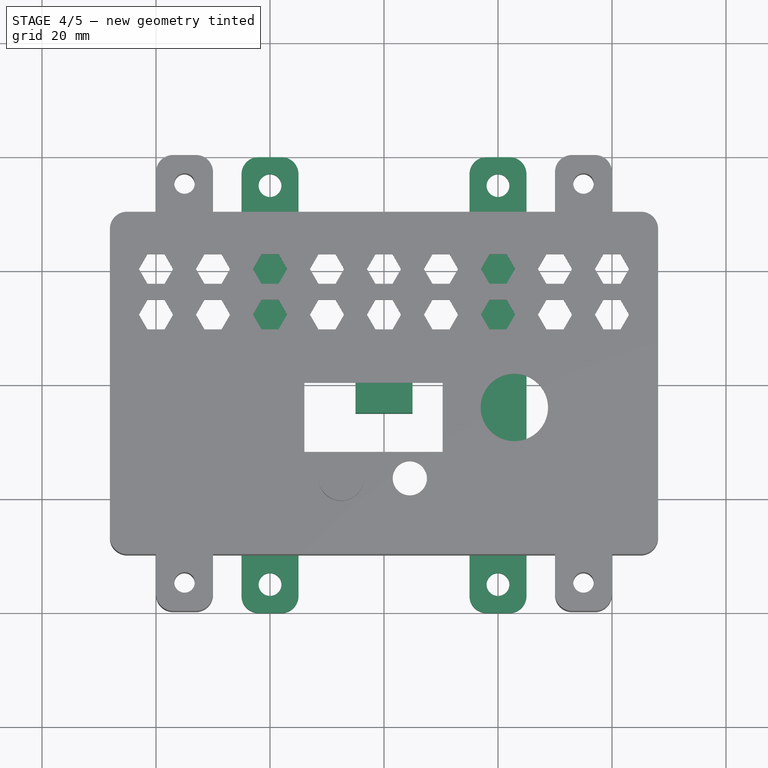
[diagram: stage 4 of 5 — top view after this stage's code; geometry added in this stage tinted green]
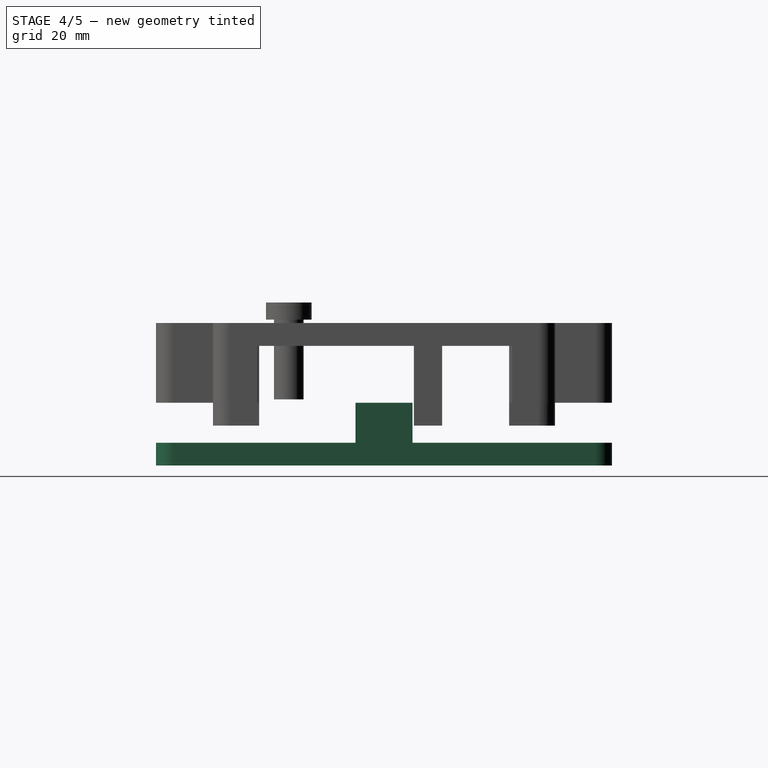
[diagram: stage 4 of 5 — right view after this stage's code; geometry added in this stage tinted green]
FEATURE [Part::Box] Box  label="Cube"
  AttacherType = Attacher::AttachEngine3D
  Height = 4
  Length = 10
  Placement = pos=(-5,-40,0) rot=(0,0,1;0rad)
  Width = 80
  expr: .Placement.Base.x = -Length / 2
  expr: .Placement.Base.y = -Width / 2
  expr: .Placement.Base.z = Extrude001.Placement.Base.z
FEATURE [Part::Fillet] Fillet
  Base = -> Box
  Edges = 4 edges r=3: [Edge1,Edge3,Edge5,Edge7]
FEATURE [Part::Cylinder] Cylinder  label="bolt hole"
  Angle = 360
  AttacherType = Attacher::AttachEngine3D
  FirstAngle = 0
  Height = 10
  Placement = pos=(0,35,0) rot=(0,0,1;0rad)
  Radius = 2
  SecondAngle = 0
  expr: .Placement.Base.y = <<Cube>>.Width / 2 - 5 mm
FEATURE [Part::Mirroring] Part__Mirroring  label="bolt hole (Mirror #1)"
  Base = (0,0,0)
  Normal = (0,1,0)
  Source = -> Cylinder
FEATURE [Part::MultiFuse] Fusion  label="hole fusion"
  Shapes = -> [Part__Mirroring,Cylinder]
FEATURE [Part::Cut] Cut  label="bolt plate cut"
  Base = -> Fillet
  Placement = pos=(20,0,0) rot=(0,0,1;0rad)
  Tool = -> Fusion
FEATURE [Part::Mirroring] Part__Mirroring001  label="bolt plate cut (Mirror #2)"
  Base = (0,0,0)
  Normal = (1,0,0)
  Source = -> Cut
FEATURE [Part::Box] Box001  label="Cube001"
  AttacherType = Attacher::AttachEngine3D
  Height = 11
  Length = 10
  Placement = pos=(-5,-5,0) rot=(0,0,1;0rad)
  Width = 10
  expr: .Placement.Base.x = -Length / 2
  expr: .Placement.Base.y = -Width / 2
  expr: Height = <<Extrude>>.LengthFwd + Extrude001.LengthFwd + <<Extrude002>>.LengthFwd
FEATURE [Part::MultiFuse] Fusion003  label="bole plates fusion"
  Shapes = -> [Cut,Part__Mirroring001]
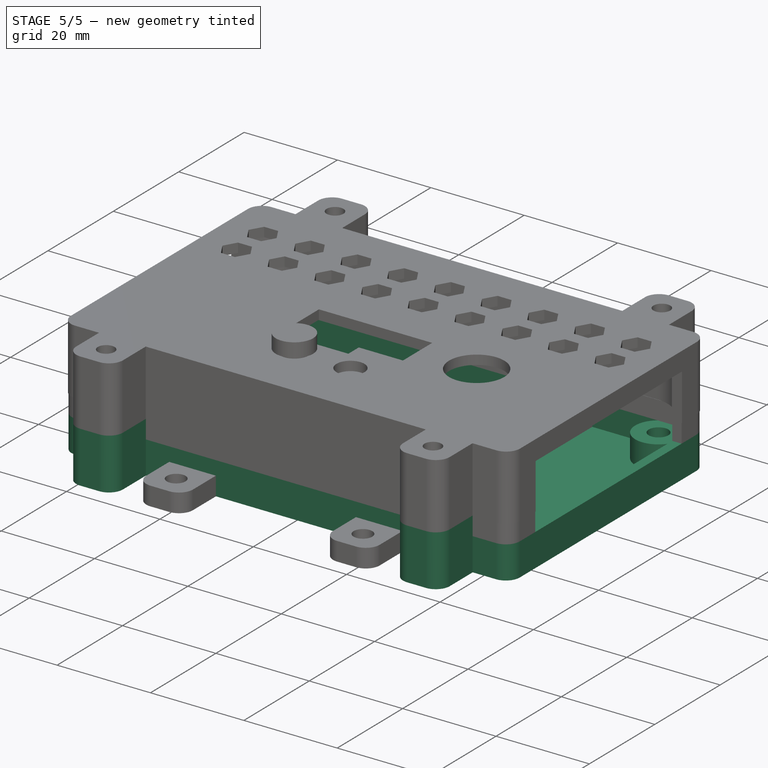
[diagram: stage 5 of 5 — iso view after this stage's code; geometry added in this stage tinted green]
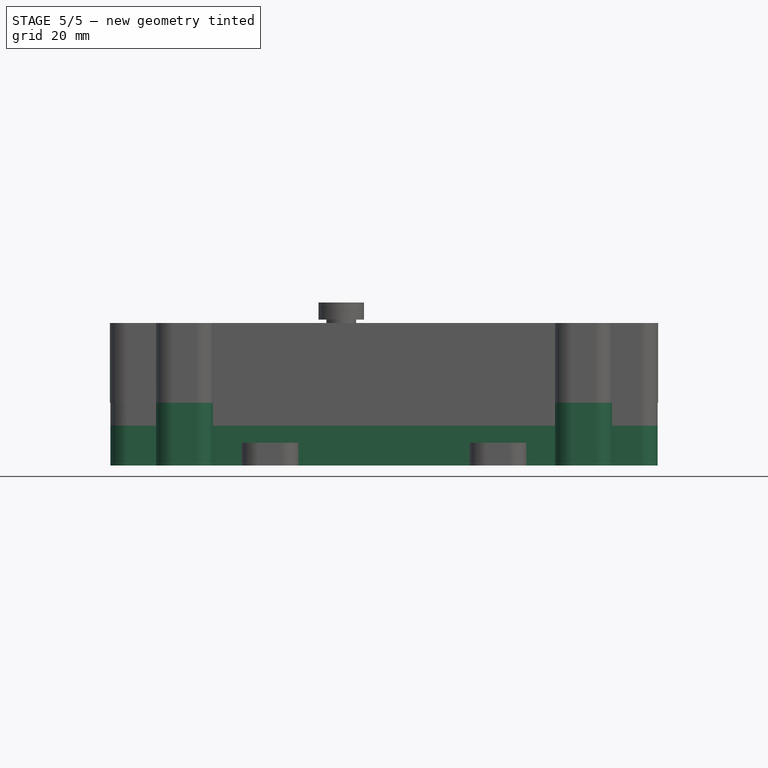
[diagram: stage 5 of 5 — front view after this stage's code; geometry added in this stage tinted green]
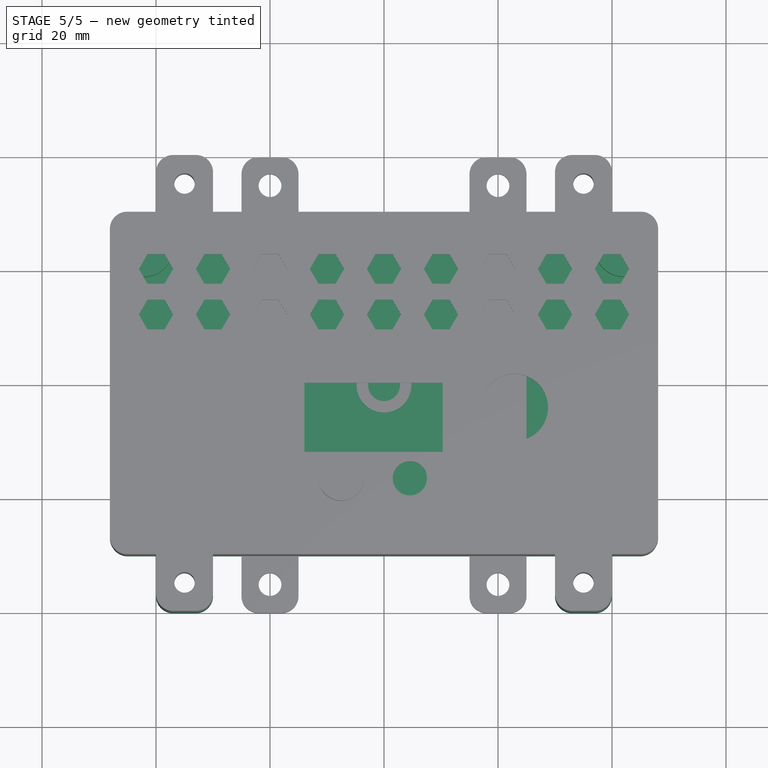
[diagram: stage 5 of 5 — top view after this stage's code; geometry added in this stage tinted green]
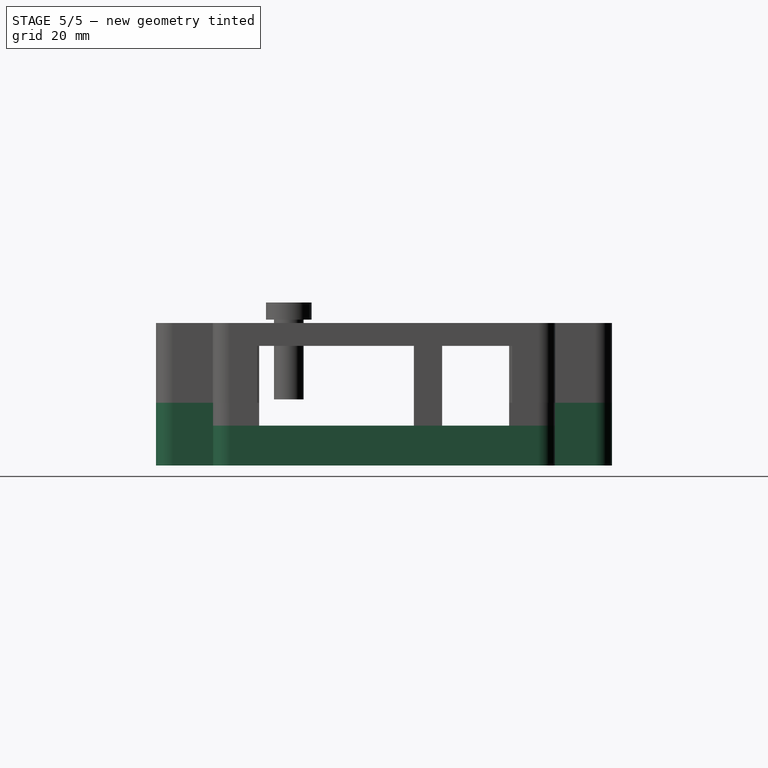
[diagram: stage 5 of 5 — right view after this stage's code; geometry added in this stage tinted green]
FEATURE [Part::Fillet] Fillet001
  Base = -> Box001
  Edges = 2 edges r=3: [Edge3,Edge7]
FEATURE [Part::Cylinder] Cylinder001  label="insert hole"
  Angle = 360
  AttacherType = Attacher::AttachEngine3D
  FirstAngle = 0
  Height = 11
  Radius = 2.1
  SecondAngle = 0
  expr: Height = <<Cube001>>.Height
FEATURE [Part::Cut] Cut001
  Base = -> Fillet001
  Tool = -> Cylinder001
FEATURE [Part::Compound] Compound
  Links = -> [Cut001]
  Placement = pos=(0,35,0) rot=(0,0,1;0rad)
  expr: .Placement.Base.y = Sketch.Constraints.OuterWidth / 2 + <<Cube001>>.Width / 2
FEATURE [Part::Mirroring] Part__Mirroring002  label="Fillet001 (Mirror #3)"
  Base = (0,0,0)
  Normal = (0,1,0)
  Source = -> Compound
FEATURE [Part::MultiFuse] Fusion001
  Placement = pos=(35,0,0) rot=(0,0,1;0rad)
  Shapes = -> [Part__Mirroring002,Compound]
  expr: .Placement.Base.x = Sketch.Constraints.OuterLength / 2 - <<Cube001>>.Length - 3 mm
FEATURE [Part::Mirroring] Part__Mirroring003  label="Fusion001 (Mirror #4)"
  Base = (0,0,0)
  Normal = (1,0,0)
  Source = -> Fusion001
FEATURE [Part::MultiFuse] Fusion002  label="insert hole fusion"
  Shapes = -> [Fusion001,Part__Mirroring003]
FEATURE [Part::MultiFuse] Fusion004  label="bottom part"
  Shapes = -> [Extrude,Extrude001,Fusion002,Fusion003,Cut002]
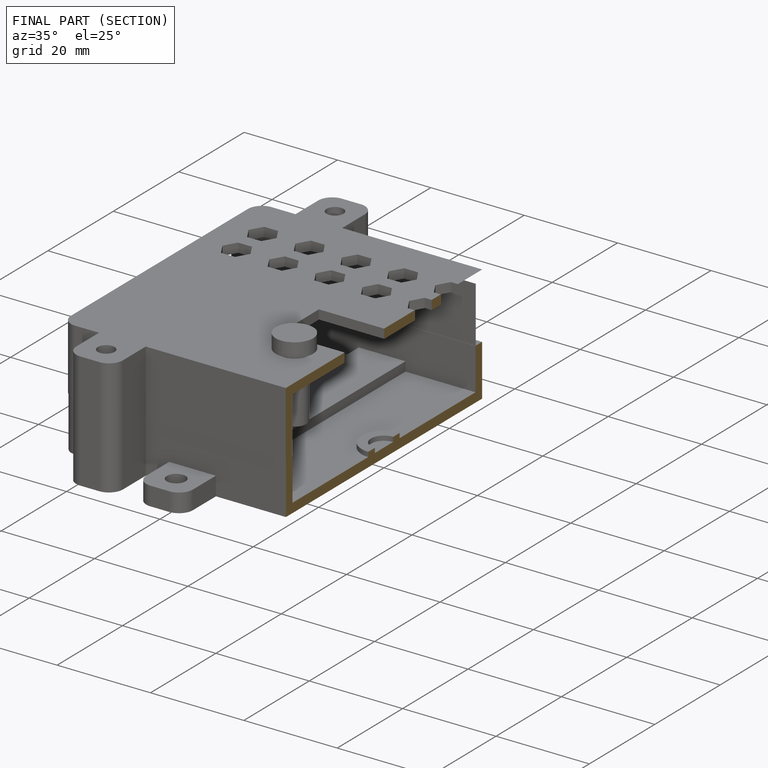
[diagram: finished part — half-section view (interior)]
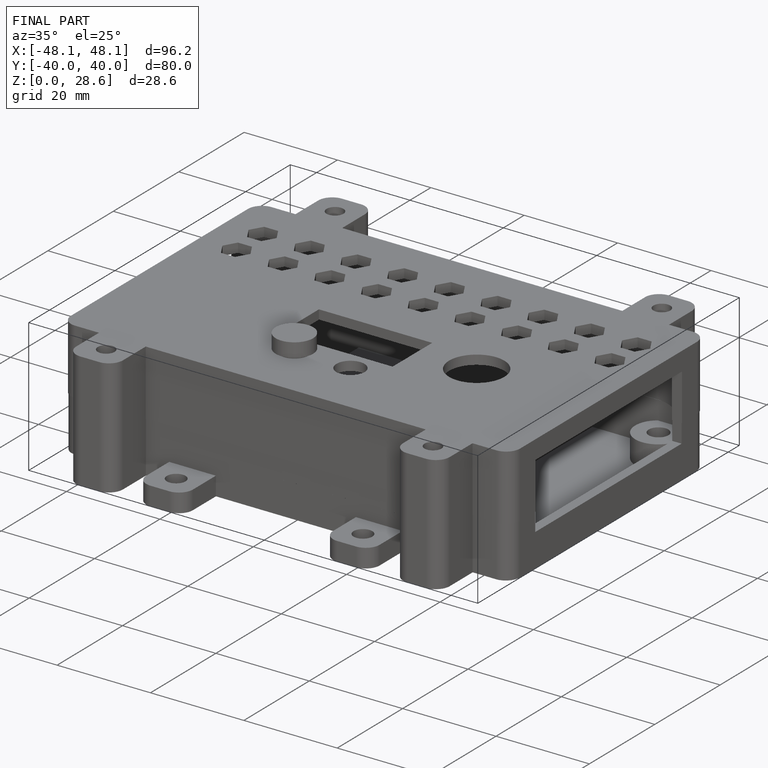
[diagram: finished part — iso view with bounding-box wireframe]
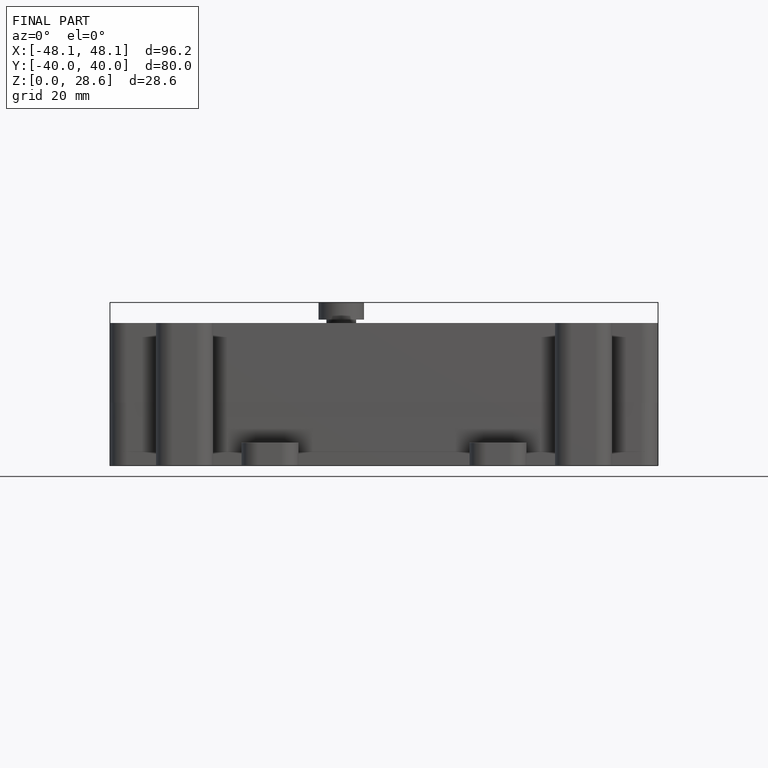
[diagram: finished part — front view with bounding-box wireframe]
